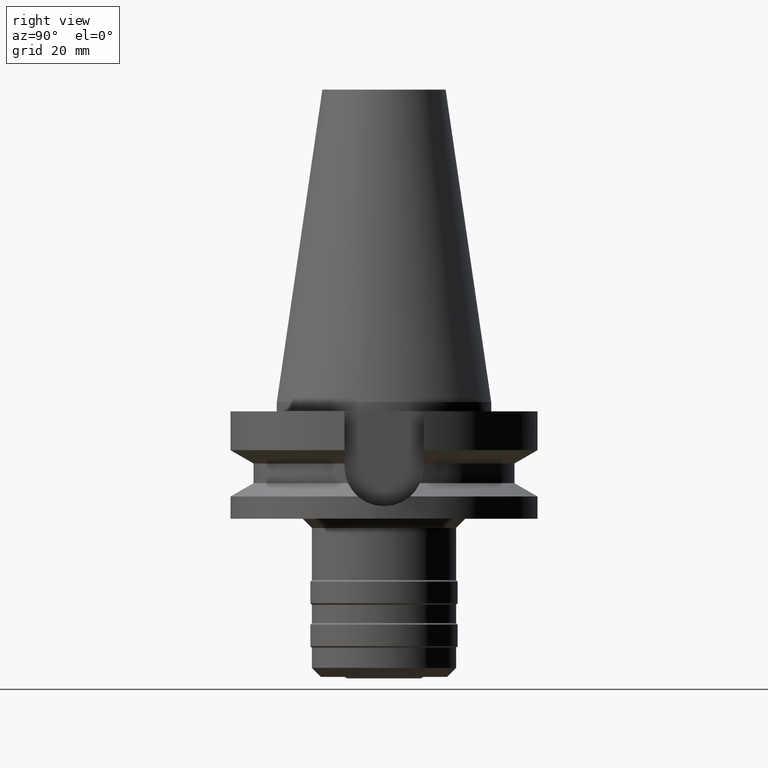
[diagram: clean part render]
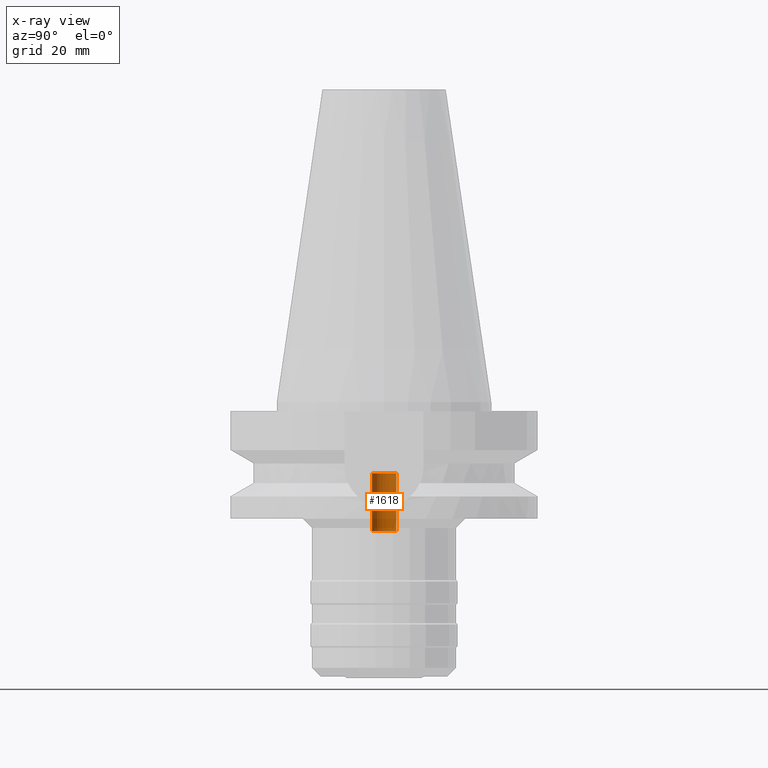
[diagram: x-ray — body ghosted, one internal face saturated and labeled with its STEP entity id]
A machine part, right view, then the same camera in x-ray: the body is ghosted and one INTERNAL B-rep face — a face not visible from any outside direction — is saturated and labeled: STEP entity #1618.
In plain terms, the highlighted cylindrical surface (edge-blend (fillet) strip) has radius 4 mm, axis along (0, 0, -1).
Its self-contained STEP definition (entity closure, byte-faithful):
#132=CARTESIAN_POINT('',(0.E0,2.588780868718E-14,-2.32E1));
#133=DIRECTION('',(0.E0,0.E0,1.E0));
#134=DIRECTION('',(0.E0,1.E0,0.E0));
#135=AXIS2_PLACEMENT_3D('',#132,#133,#134);
#140=DIRECTION('',(0.E0,0.E0,1.E0));
#141=VECTOR('',#140,1.88E1);
#142=CARTESIAN_POINT('',(0.E0,4.E0,-4.2E1));
#143=LINE('',#142,#141);
#147=DIRECTION('',(0.E0,0.E0,1.E0));
#148=VECTOR('',#147,1.88E1);
#149=CARTESIAN_POINT('',(0.E0,-4.E0,-4.2E1));
#150=LINE('',#149,#148);
#170=CARTESIAN_POINT('',(0.E0,2.588780868718E-14,-4.2E1));
#171=DIRECTION('',(0.E0,0.E0,-1.E0));
#172=DIRECTION('',(0.E0,-1.E0,0.E0));
#173=AXIS2_PLACEMENT_3D('',#170,#171,#172);
#1300=CARTESIAN_POINT('',(0.E0,-4.E0,-2.32E1));
#1301=CARTESIAN_POINT('',(0.E0,4.E0,-2.32E1));
#1302=VERTEX_POINT('',#1300);
#1303=VERTEX_POINT('',#1301);
#1304=CARTESIAN_POINT('',(0.E0,4.E0,-4.2E1));
#1305=VERTEX_POINT('',#1304);
#1306=CARTESIAN_POINT('',(0.E0,-4.E0,-4.2E1));
#1307=VERTEX_POINT('',#1306);
#1606=CARTESIAN_POINT('',(0.E0,2.588780868718E-14,1.1139E2));
#1607=DIRECTION('',(0.E0,0.E0,-1.E0));
#1608=DIRECTION('',(0.E0,-1.E0,0.E0));
#1609=AXIS2_PLACEMENT_3D('',#1606,#1607,#1608);
#1610=CYLINDRICAL_SURFACE('',#1609,4.E0);
#1611=ORIENTED_EDGE('',*,*,#1596,.F.);
#1613=ORIENTED_EDGE('',*,*,#1612,.F.);
#1614=ORIENTED_EDGE('',*,*,#1599,.T.);
#1615=ORIENTED_EDGE('',*,*,#1586,.F.);
#1616=EDGE_LOOP('',(#1611,#1613,#1614,#1615));
#1617=FACE_OUTER_BOUND('',#1616,.F.);
#136=CIRCLE('',#135,4.E0);
#174=CIRCLE('',#173,4.E0);
#1586=EDGE_CURVE('',#1303,#1302,#136,.T.);
#1596=EDGE_CURVE('',#1305,#1303,#143,.T.);
#1599=EDGE_CURVE('',#1307,#1302,#150,.T.);
#1612=EDGE_CURVE('',#1307,#1305,#174,.T.);
#1618=ADVANCED_FACE('',(#1617),#1610,.F.);